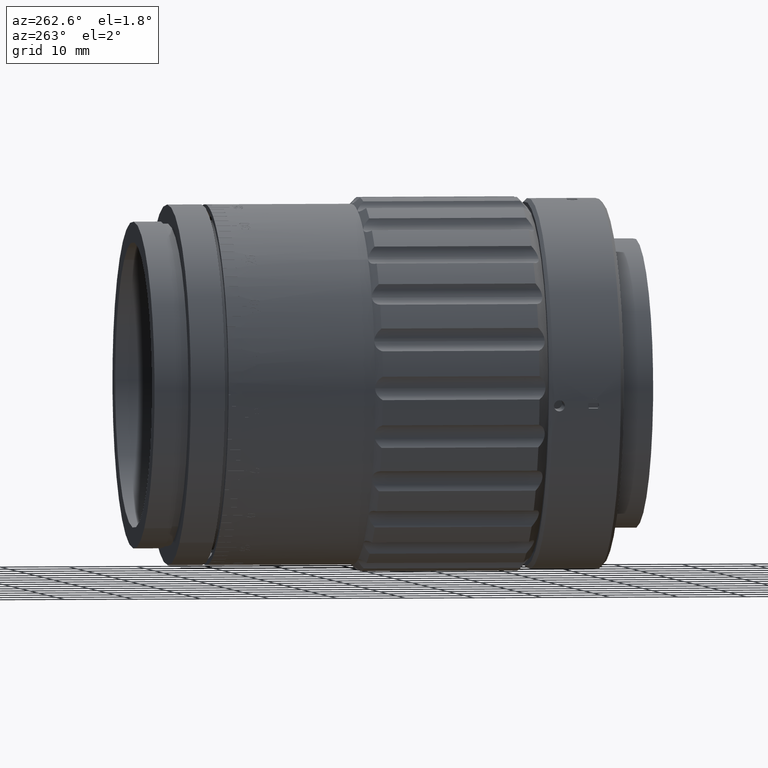
[diagram: clean part render]
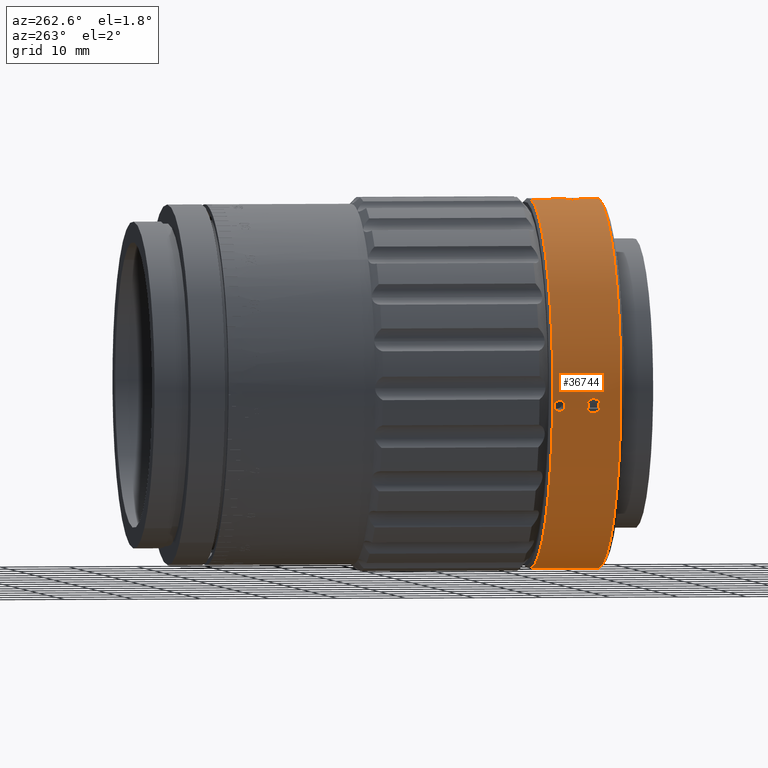
[diagram: same view with one face highlighted and labeled with its STEP entity id]
A machine part, auxiliary view. The second image highlights one B-rep face of the part: STEP entity #36744.
In plain terms, the highlighted cylindrical surface (partial cylindrical patch) has radius 27 mm, axis along (-0, 1, -0).
Its self-contained STEP definition (entity closure, byte-faithful):
#378 = LINE ( 'NONE', #51352, #41033 ) ;
#1504 = CARTESIAN_POINT ( 'NONE',  ( -26.99252879473906200, -0.7919901473986317200, -0.6394071710473803200 ) ) ;
#2109 = CARTESIAN_POINT ( 'NONE',  ( -0.4028455707387504900, -5.999070336816114200, -26.99716824786193200 ) ) ;
#2697 = CARTESIAN_POINT ( 'NONE',  ( -0.8000000000045278700, -5.300000000000415500, -26.98814554577607400 ) ) ;
#3249 = CARTESIAN_POINT ( 'NONE',  ( -0.1055777577861081900, -4.499999999999960900, -27.00000000000000700 ) ) ;
#3613 = EDGE_LOOP ( 'NONE', ( #13681, #47373, #79746, #81574, #82108, #44477, #17124, #57003, #56278, #48354 ) ) ;
#4101 = CARTESIAN_POINT ( 'NONE',  ( -26.98814554577620600, -5.299999999999997200, -0.8000000000000019300 ) ) ;
#4671 = CARTESIAN_POINT ( 'NONE',  ( -26.98814554577608100, -5.300000000000415500, 0.8000000000042450900 ) ) ;
#4807 = CARTESIAN_POINT ( 'NONE',  ( -0.7999999999999077800, -5.088715678432484100, 26.98814554577621300 ) ) ;
#6897 = ORIENTED_EDGE ( 'NONE', *, *, #46007, .F. ) ;
#6957 = CARTESIAN_POINT ( 'NONE',  ( -26.98814554577620600, -5.299999999999997200, -0.8000000000000019300 ) ) ;
#7150 = VECTOR ( 'NONE', #77707, 1000.000000000000000 ) ;
#7521 = CARTESIAN_POINT ( 'NONE',  ( -26.99936523992313700, -6.079312422084790100, 0.2089506809376603100 ) ) ;
#7744 = FACE_OUTER_BOUND ( 'NONE', #3613, .T. ) ;
#8718 = ORIENTED_EDGE ( 'NONE', *, *, #71736, .F. ) ;
#8855 = CARTESIAN_POINT ( 'NONE',  ( -0.6403259576531101800, -5.791053503922866800, -26.99250935347535900 ) ) ;
#9100 = CARTESIAN_POINT ( 'NONE',  ( -26.99999780241738300, -1.099925831581529500, -0.2090123629749049700 ) ) ;
#9713 = CARTESIAN_POINT ( 'NONE',  ( -0.6990070776970701600, -5.702986168747848700, -26.99098000136177000 ) ) ;
#9736 = CARTESIAN_POINT ( 'NONE',  ( -26.99936782619287400, 0.4794047610877862400, -0.2086924303816099500 ) ) ;
#10322 = CARTESIAN_POINT ( 'NONE',  ( -26.99935573635296400, 0.4789883439324663600, 0.2101130331653920100 ) ) ;
#10395 = B_SPLINE_CURVE_WITH_KNOTS ( 'NONE', 3,
 ( #13303, #79771, #39790, #59920, #20020, #73367, #81188, #81767 ),
 .UNSPECIFIED., .F., .F.,
 ( 4, 2, 2, 4 ),
 ( 0.0000000000000000000, 0.0003127337224148459800, 0.0006254674448296919500, 0.001250934889659381700 ),
 .UNSPECIFIED. ) ;
#11385 = CARTESIAN_POINT ( 'NONE',  ( -27.00000260586581600, -4.499912051997977600, -0.1048389072506226600 ) ) ;
#11959 = CARTESIAN_POINT ( 'NONE',  ( -26.99561064362769300, -4.660907787016499900, 0.4923822362610364400 ) ) ;
#12527 = CARTESIAN_POINT ( 'NONE',  ( -26.99715704377385000, -4.601357668019977300, 0.4035705869536567200 ) ) ;
#12713 = VECTOR ( 'NONE', #28845, 1000.000000000000000 ) ;
#13303 = CARTESIAN_POINT ( 'NONE',  ( -0.7999999999999076700, -5.299999999999997200, 26.98814554577620900 ) ) ;
#13375 = EDGE_CURVE ( 'NONE', #69921, #86188, #55148, .T. ) ;
#13376 = CARTESIAN_POINT ( 'NONE',  ( -26.99252879473906200, -5.791990147398633900, -0.6394071710473813200 ) ) ;
#13681 = ORIENTED_EDGE ( 'NONE', *, *, #20611, .F. ) ;
#13940 = CARTESIAN_POINT ( 'NONE',  ( -26.99251117518482700, -5.791153827790166600, 0.6402524440149955900 ) ) ;
#14082 = CARTESIAN_POINT ( 'NONE',  ( 3.306546357697854100E-015, 35.23590944691601100, -27.00000000000000400 ) ) ;
#15796 = CARTESIAN_POINT ( 'NONE',  ( -26.98878449226377200, -0.5094628663668664400, -0.7791829174816232700 ) ) ;
#16402 = CARTESIAN_POINT ( 'NONE',  ( -0.8000000000045278700, -5.300000000000415500, -26.98814554577607400 ) ) ;
#17124 = ORIENTED_EDGE ( 'NONE', *, *, #19124, .T. ) ;
#18396 = CARTESIAN_POINT ( 'NONE',  ( -26.99936782619286300, -4.520595238912213700, -0.2086924303816107600 ) ) ;
#18670 = CARTESIAN_POINT ( 'NONE',  ( -26.99098689323858500, -4.881496996286215600, -0.7130770306225818800 ) ) ;
#19124 = EDGE_CURVE ( 'NONE', #82618, #69004, #62039, .T. ) ;
#19977 = CARTESIAN_POINT ( 'NONE',  ( -0.4916935295135624300, -4.660366324339360500, 26.99562353355641900 ) ) ;
#20020 = CARTESIAN_POINT ( 'NONE',  ( -0.6393357880115693200, -5.792087701774368800, 26.99253056519907200 ) ) ;
#20542 = CARTESIAN_POINT ( 'NONE',  ( 0.0000000000000000000, -9.300000000000002500, 0.0000000000000000000 ) ) ;
#20611 = EDGE_CURVE ( 'NONE', #41851, #65130, #378, .T. ) ;
#20740 = AXIS2_PLACEMENT_3D ( 'NONE', #71781, #72340, #51625 ) ;
#20942 = CARTESIAN_POINT ( 'NONE',  ( -26.99717085908692800, -5.999170141794993000, 0.4026777261065587200 ) ) ;
#21307 = FACE_BOUND ( 'NONE', #44847, .T. ) ;
#22517 = CARTESIAN_POINT ( 'NONE',  ( -26.98878180905359200, -0.5091500004299039900, 0.7792754668592725100 ) ) ;
#23111 = CARTESIAN_POINT ( 'NONE',  ( -0.4920776469118905400, -4.660663907668381800, -26.99561639113073500 ) ) ;
#23166 = CARTESIAN_POINT ( 'NONE',  ( -26.98814554577620200, -0.08860398915272826900, -0.8000000000000010400 ) ) ;
#24018 = CARTESIAN_POINT ( 'NONE',  ( -26.98814554577619500, -0.09119174797818492600, 0.8000000000001783500 ) ) ;
#24920 = LINE ( 'NONE', #31042, #7150 ) ;
#27637 = CARTESIAN_POINT ( 'NONE',  ( -26.98814554577620600, -5.405721945829711200, -0.8000000000000019300 ) ) ;
#28197 = CARTESIAN_POINT ( 'NONE',  ( 0.0000000000000000000, 0.7000000000000339300, 27.00000000000000400 ) ) ;
#28563 = EDGE_LOOP ( 'NONE', ( #69345, #72068 ) ) ;
#28845 = DIRECTION ( 'NONE',  ( -0.0000000000000000000, 1.000000000000000000, -0.0000000000000000000 ) ) ;
#29517 = EDGE_CURVE ( 'NONE', #54181, #69551, #77764, .T. ) ;
#30705 = CARTESIAN_POINT ( 'NONE',  ( -26.99999737755909700, 0.4999114925883655400, 0.1061768573496410900 ) ) ;
#30721 = EDGE_CURVE ( 'NONE', #65130, #38813, #30807, .T. ) ;
#30807 = B_SPLINE_CURVE_WITH_KNOTS ( 'NONE', 3,
 ( #61601, #82308, #75025, #2109, #48748, #8855, #9713, #36784, #56308, #2697 ),
 .UNSPECIFIED., .F., .F.,
 ( 4, 2, 2, 2, 4 ),
 ( 0.001250934889659190100, 0.001563526771067568900, 0.001876118652475947800, 0.002188710533884326500, 0.002501302415292705600 ),
 .UNSPECIFIED. ) ;
#31042 = CARTESIAN_POINT ( 'NONE',  ( 0.0000000000000000000, 35.23590944691601100, 27.00000000000000400 ) ) ;
#34305 = CARTESIAN_POINT ( 'NONE',  ( -26.98878449226377900, -5.509462866366868100, -0.7791829174816239400 ) ) ;
#34891 = CARTESIAN_POINT ( 'NONE',  ( -2.745235950169121100E-024, -4.499999999999997300, 27.00000000000000400 ) ) ;
#35583 = CARTESIAN_POINT ( 'NONE',  ( -1.231113765503358500E-012, -6.100000000010527200, -27.00000000000031600 ) ) ;
#35879 = CARTESIAN_POINT ( 'NONE',  ( -26.99098400059718400, -0.7032414202710672900, -0.6988541108554549000 ) ) ;
#36465 = CARTESIAN_POINT ( 'NONE',  ( -0.4031928956656404800, -4.601130324683815300, -26.99716298219740200 ) ) ;
#36744 = ADVANCED_FACE ( 'NONE', ( #7744, #49466, #21307 ), #42098, .T. ) ;
#36784 = CARTESIAN_POINT ( 'NONE',  ( -0.7792846025471710200, -5.509103455508535400, -26.98878151819407700 ) ) ;
#37053 = CARTESIAN_POINT ( 'NONE',  ( -0.7133946287711061500, -4.882109701198219300, -26.99097714226639200 ) ) ;
#38153 = EDGE_CURVE ( 'NONE', #86188, #72053, #10395, .T. ) ;
#38813 = VERTEX_POINT ( 'NONE', #64437 ) ;
#39790 = CARTESIAN_POINT ( 'NONE',  ( -0.7791729323292893000, -5.509511385822150900, 26.98878480638104800 ) ) ;
#40132 = EDGE_CURVE ( 'NONE', #38813, #51298, #51568, .T. ) ;
#40864 = DIRECTION ( 'NONE',  ( -0.0000000000000000000, 1.000000000000000000, -0.0000000000000000000 ) ) ;
#41033 = VECTOR ( 'NONE', #84604, 1000.000000000000000 ) ;
#41126 = EDGE_CURVE ( 'NONE', #41851, #76396, #65901, .T. ) ;
#41436 = CARTESIAN_POINT ( 'NONE',  ( -26.99251117518483100, -0.7911538277901644100, 0.6402524440149958100 ) ) ;
#41851 = VERTEX_POINT ( 'NONE', #79695 ) ;
#42098 = CYLINDRICAL_SURFACE ( 'NONE', #77087, 27.00000000000000400 ) ;
#42118 = EDGE_CURVE ( 'NONE', #69551, #54181, #67262, .T. ) ;
#42246 = VERTEX_POINT ( 'NONE', #4101 ) ;
#42583 = CARTESIAN_POINT ( 'NONE',  ( -26.99098120701216200, -0.7030715857778819800, 0.6989615673748226200 ) ) ;
#42849 = DIRECTION ( 'NONE',  ( 0.0000000000000000000, 0.0000000000000000000, 1.000000000000000000 ) ) ;
#43199 = CARTESIAN_POINT ( 'NONE',  ( -0.2095706711979230300, -4.520857222349243400, -26.99936024672100700 ) ) ;
#43460 = EDGE_CURVE ( 'NONE', #69921, #82618, #46045, .T. ) ;
#43543 = CARTESIAN_POINT ( 'NONE',  ( -26.99561064362769600, 0.3390922129835006200, 0.4923822362610372800 ) ) ;
#44477 = ORIENTED_EDGE ( 'NONE', *, *, #43460, .T. ) ;
#44847 = EDGE_LOOP ( 'NONE', ( #8718, #6897 ) ) ;
#46007 = EDGE_CURVE ( 'NONE', #63333, #42246, #57831, .T. ) ;
#46045 = LINE ( 'NONE', #69385, #12713 ) ;
#46168 = DIRECTION ( 'NONE',  ( 0.0000000000000000000, 0.0000000000000000000, 1.000000000000000000 ) ) ;
#46572 = CARTESIAN_POINT ( 'NONE',  ( -2.745235950169121100E-024, -4.499999999999997300, 27.00000000000000400 ) ) ;
#46582 = CARTESIAN_POINT ( 'NONE',  ( -26.99098400059718700, -5.703241420271069700, -0.6988541108554555700 ) ) ;
#47373 = ORIENTED_EDGE ( 'NONE', *, *, #41126, .T. ) ;
#47432 = CARTESIAN_POINT ( 'NONE',  ( -26.98814554577608100, -5.300000000000415500, 0.8000000000042450900 ) ) ;
#48133 = CARTESIAN_POINT ( 'NONE',  ( -26.98814554577620900, -0.4044277733566746200, 0.7999999999999096700 ) ) ;
#48354 = ORIENTED_EDGE ( 'NONE', *, *, #30721, .F. ) ;
#48423 = CARTESIAN_POINT ( 'NONE',  ( -27.00000109654970600, -1.100037008554557200, 0.1040800697540591300 ) ) ;
#48748 = CARTESIAN_POINT ( 'NONE',  ( -0.4909796347112259700, -5.940382599746465400, -26.99563886126420100 ) ) ;
#49466 = FACE_BOUND ( 'NONE', #28563, .T. ) ;
#49895 = CARTESIAN_POINT ( 'NONE',  ( 3.306546360444549100E-015, -4.499999999999997300, -27.00000000000000400 ) ) ;
#51298 = VERTEX_POINT ( 'NONE', #76878 ) ;
#51309 = CARTESIAN_POINT ( 'NONE',  ( -26.99562929885511800, -4.660121836214545800, -0.4913876671634151400 ) ) ;
#51352 = CARTESIAN_POINT ( 'NONE',  ( 3.306546357697854100E-015, 35.23590944691601100, -27.00000000000000400 ) ) ;
#51568 = B_SPLINE_CURVE_WITH_KNOTS ( 'NONE', 3,
 ( #16402, #62723, #37053, #23111, #36465, #43199, #3249, #49895 ),
 .UNSPECIFIED., .F., .F.,
 ( 4, 2, 2, 4 ),
 ( 0.002501302415292705600, 0.003126816726712187100, 0.003439573882421928500, 0.003752331038131669900 ),
 .UNSPECIFIED. ) ;
#51625 = DIRECTION ( 'NONE',  ( 0.0000000000000000000, 0.0000000000000000000, -1.000000000000000000 ) ) ;
#52621 = CARTESIAN_POINT ( 'NONE',  ( -0.4031249078069952300, -4.601071344764525500, 26.99716447320465900 ) ) ;
#53178 = CARTESIAN_POINT ( 'NONE',  ( -0.2092375607039467800, -4.520749976198675100, 26.99936330596981500 ) ) ;
#53297 = CARTESIAN_POINT ( 'NONE',  ( -26.99999780241737600, -6.099925831581531500, -0.2090123629749053600 ) ) ;
#53590 = CARTESIAN_POINT ( 'NONE',  ( -26.98814554577620900, -5.404427773356677500, 0.7999999999999091200 ) ) ;
#54181 = VERTEX_POINT ( 'NONE', #56547 ) ;
#54849 = CARTESIAN_POINT ( 'NONE',  ( -26.99936523992314400, -1.079312422084790900, 0.2089506809376607500 ) ) ;
#55148 = B_SPLINE_CURVE_WITH_KNOTS ( 'NONE', 3,
 ( #46572, #71343, #53178, #52621, #19977, #72571, #4807, #71599 ),
 .UNSPECIFIED., .F., .F.,
 ( 4, 2, 2, 4 ),
 ( 0.003752331038131480400, 0.004064757883205314900, 0.004377184728279149800, 0.005002038418426818700 ),
 .UNSPECIFIED. ) ;
#55153 = CARTESIAN_POINT ( 'NONE',  ( -26.98814554577620600, -0.2999999999999959400, -0.8000000000000010400 ) ) ;
#56278 = ORIENTED_EDGE ( 'NONE', *, *, #40132, .F. ) ;
#56308 = CARTESIAN_POINT ( 'NONE',  ( -0.8000000000001917800, -5.404404086272092100, -26.98814554577620200 ) ) ;
#56331 = CARTESIAN_POINT ( 'NONE',  ( -26.99717040799408000, 0.3991557807945795800, -0.4027474472748569000 ) ) ;
#56547 = CARTESIAN_POINT ( 'NONE',  ( -26.98814554577608100, -0.3000000000004140500, 0.8000000000042457600 ) ) ;
#56935 = CARTESIAN_POINT ( 'NONE',  ( -26.99098689323858800, 0.1185030037137863300, -0.7130770306225808800 ) ) ;
#57003 = ORIENTED_EDGE ( 'NONE', *, *, #84096, .F. ) ;
#57504 = CARTESIAN_POINT ( 'NONE',  ( -26.98814554577608100, -0.3000000000004140500, 0.8000000000042457600 ) ) ;
#57831 = B_SPLINE_CURVE_WITH_KNOTS ( 'NONE', 3,
 ( #4671, #85135, #84564, #11959, #12527, #58555, #72601, #11385, #18396, #57995, #51309, #18670, #65019, #72311 ),
 .UNSPECIFIED., .F., .F.,
 ( 4, 2, 2, 2, 2, 2, 4 ),
 ( 0.002501302415292706900, 0.003126486416076236300, 0.003439078416468000600, 0.003751670416859764500, 0.004064262417251528400, 0.004376854417643292700, 0.005002038418426822200 ),
 .UNSPECIFIED. ) ;
#57995 = CARTESIAN_POINT ( 'NONE',  ( -26.99717040799408400, -4.600844219205424000, -0.4027474472748580600 ) ) ;
#58555 = CARTESIAN_POINT ( 'NONE',  ( -26.99935573635296400, -4.521011656067536000, 0.2101130331653920700 ) ) ;
#59920 = CARTESIAN_POINT ( 'NONE',  ( -0.6988094280698002900, -5.703324760589421100, 26.99098518333222400 ) ) ;
#59999 = CARTESIAN_POINT ( 'NONE',  ( -26.99098120701215800, -5.703071585777883500, 0.6989615673748218500 ) ) ;
#61601 = CARTESIAN_POINT ( 'NONE',  ( -1.231113765503358500E-012, -6.100000000010527200, -27.00000000000031600 ) ) ;
#61796 = CARTESIAN_POINT ( 'NONE',  ( 3.306546357697854100E-015, 0.7000000000000339300, -27.00000000000000400 ) ) ;
#61816 = CARTESIAN_POINT ( 'NONE',  ( 0.0000000000000000000, 35.23590944691601100, 0.0000000000000000000 ) ) ;
#62039 = CIRCLE ( 'NONE', #20740, 27.00000000000000400 ) ;
#62427 = CARTESIAN_POINT ( 'NONE',  ( -26.99564129960699800, -0.9404855323284246900, 0.4908498319222283600 ) ) ;
#62723 = CARTESIAN_POINT ( 'NONE',  ( -0.8000000000004603400, -5.091081425918710000, -26.98814554577618500 ) ) ;
#63268 = DIRECTION ( 'NONE',  ( -0.0000000000000000000, 1.000000000000000000, -0.0000000000000000000 ) ) ;
#63333 = VERTEX_POINT ( 'NONE', #85557 ) ;
#64437 = CARTESIAN_POINT ( 'NONE',  ( -0.8000000000045278700, -5.300000000000415500, -26.98814554577607400 ) ) ;
#65019 = CARTESIAN_POINT ( 'NONE',  ( -26.98814554577620600, -5.088603989152730400, -0.8000000000000020400 ) ) ;
#65130 = VERTEX_POINT ( 'NONE', #35583 ) ;
#65437 = CARTESIAN_POINT ( 'NONE',  ( 1.234420311641378900E-012, -6.100000000010527200, 27.00000000000031600 ) ) ;
#65901 = CIRCLE ( 'NONE', #70216, 27.00000000000000400 ) ;
#67186 = DIRECTION ( 'NONE',  ( -0.0000000000000000000, 1.000000000000000000, -0.0000000000000000000 ) ) ;
#67262 = B_SPLINE_CURVE_WITH_KNOTS ( 'NONE', 3,
 ( #81393, #82554, #15796, #35879, #1504, #68870, #9100, #48423, #54849, #68596, #62427, #41436, #42583, #22517, #48133, #81688 ),
 .UNSPECIFIED., .F., .F.,
 ( 4, 2, 2, 2, 2, 2, 2, 4 ),
 ( 5.421010862427521600E-020, 0.0003126628019115884700, 0.0006253256038231768200, 0.001250651207646353000, 0.001563314009557941400, 0.001875976811469529300, 0.002188639613381117200, 0.002501302415292705600 ),
 .UNSPECIFIED. ) ;
#67597 = CARTESIAN_POINT ( 'NONE',  ( -26.98878180905358100, -5.509150000429905900, 0.7792754668592719600 ) ) ;
#68505 = VECTOR ( 'NONE', #40864, 1000.000000000000000 ) ;
#68596 = CARTESIAN_POINT ( 'NONE',  ( -26.99717085908692800, -0.9991701417949895300, 0.4026777261065592200 ) ) ;
#68870 = CARTESIAN_POINT ( 'NONE',  ( -26.99716906235829600, -1.013380447473373900, -0.4179374106959777800 ) ) ;
#69004 = VERTEX_POINT ( 'NONE', #61796 ) ;
#69345 = ORIENTED_EDGE ( 'NONE', *, *, #42118, .F. ) ;
#69385 = CARTESIAN_POINT ( 'NONE',  ( 0.0000000000000000000, 35.23590944691601100, 27.00000000000000400 ) ) ;
#69538 = CARTESIAN_POINT ( 'NONE',  ( -26.99715704377384600, 0.3986423319800251900, 0.4035705869536567200 ) ) ;
#69551 = VERTEX_POINT ( 'NONE', #55153 ) ;
#69819 = CARTESIAN_POINT ( 'NONE',  ( -26.98814554577620600, -0.2999999999999959400, -0.8000000000000010400 ) ) ;
#69921 = VERTEX_POINT ( 'NONE', #34891 ) ;
#70150 = CARTESIAN_POINT ( 'NONE',  ( -0.7999999999999076700, -5.299999999999997200, 26.98814554577620900 ) ) ;
#70216 = AXIS2_PLACEMENT_3D ( 'NONE', #20542, #67186, #46168 ) ;
#70689 = CARTESIAN_POINT ( 'NONE',  ( -26.99097393854134800, 0.1176762962197806800, 0.7134865133290050300 ) ) ;
#71343 = CARTESIAN_POINT ( 'NONE',  ( -0.1054662544817855800, -4.500000000000009800, 27.00000000000000000 ) ) ;
#71426 = CARTESIAN_POINT ( 'NONE',  ( 0.0000000000000000000, -9.300000000000002500, 27.00000000000000400 ) ) ;
#71599 = CARTESIAN_POINT ( 'NONE',  ( -0.7999999999999076700, -5.299999999999997200, 26.98814554577620900 ) ) ;
#71736 = EDGE_CURVE ( 'NONE', #42246, #63333, #82879, .T. ) ;
#71781 = CARTESIAN_POINT ( 'NONE',  ( 0.0000000000000000000, 0.7000000000000339300, 0.0000000000000000000 ) ) ;
#72053 = VERTEX_POINT ( 'NONE', #65437 ) ;
#72068 = ORIENTED_EDGE ( 'NONE', *, *, #29517, .F. ) ;
#72311 = CARTESIAN_POINT ( 'NONE',  ( -26.98814554577620600, -5.299999999999997200, -0.8000000000000019300 ) ) ;
#72340 = DIRECTION ( 'NONE',  ( 0.0000000000000000000, -1.000000000000000000, 0.0000000000000000000 ) ) ;
#72571 = CARTESIAN_POINT ( 'NONE',  ( -0.7131679168546680700, -4.881709925544518200, 26.99098370738368800 ) ) ;
#72601 = CARTESIAN_POINT ( 'NONE',  ( -26.99999737755909700, -4.500088507411635200, 0.1061768573496406600 ) ) ;
#73367 = CARTESIAN_POINT ( 'NONE',  ( -0.4177787390448513500, -6.013486614788467600, 26.99717183664534700 ) ) ;
#73723 = CARTESIAN_POINT ( 'NONE',  ( -27.00000109654969900, -6.100037008554556600, 0.1040800697540588000 ) ) ;
#73768 = LINE ( 'NONE', #14082, #68505 ) ;
#75025 = CARTESIAN_POINT ( 'NONE',  ( -0.2091783036279130400, -6.079248565588198300, -26.99936337017078000 ) ) ;
#76194 = CARTESIAN_POINT ( 'NONE',  ( -27.00000260586582000, 0.5000879480020235000, -0.1048389072506224300 ) ) ;
#76396 = VERTEX_POINT ( 'NONE', #71426 ) ;
#76878 = CARTESIAN_POINT ( 'NONE',  ( 3.306546360444549100E-015, -4.499999999999997300, -27.00000000000000400 ) ) ;
#77087 = AXIS2_PLACEMENT_3D ( 'NONE', #61816, #63268, #42849 ) ;
#77707 = DIRECTION ( 'NONE',  ( -0.0000000000000000000, 1.000000000000000000, -0.0000000000000000000 ) ) ;
#77764 = B_SPLINE_CURVE_WITH_KNOTS ( 'NONE', 3,
 ( #57504, #24018, #70689, #43543, #69538, #10322, #30705, #76194, #9736, #56331, #82902, #56935, #23166, #69819 ),
 .UNSPECIFIED., .F., .F.,
 ( 4, 2, 2, 2, 2, 2, 4 ),
 ( 0.002501302415292705600, 0.003126486416076233700, 0.003439078416467997600, 0.003751670416859761500, 0.004064262417251525800, 0.004376854417643289200, 0.005002038418426817800 ),
 .UNSPECIFIED. ) ;
#79695 = CARTESIAN_POINT ( 'NONE',  ( 3.306546357697854100E-015, -9.300000000000002500, -27.00000000000000400 ) ) ;
#79746 = ORIENTED_EDGE ( 'NONE', *, *, #81061, .T. ) ;
#79771 = CARTESIAN_POINT ( 'NONE',  ( -0.7999999999999080100, -5.405745926468143600, 26.98814554577622000 ) ) ;
#80127 = CARTESIAN_POINT ( 'NONE',  ( -26.99716906235829900, -6.013380447473376300, -0.4179374106959787300 ) ) ;
#80694 = CARTESIAN_POINT ( 'NONE',  ( -26.99564129960699400, -5.940485532328426500, 0.4908498319222277500 ) ) ;
#81061 = EDGE_CURVE ( 'NONE', #76396, #72053, #24920, .T. ) ;
#81188 = CARTESIAN_POINT ( 'NONE',  ( -0.2087795574650591900, -6.100000000000441100, 27.00000000000002100 ) ) ;
#81393 = CARTESIAN_POINT ( 'NONE',  ( -26.98814554577620600, -0.2999999999999959400, -0.8000000000000010400 ) ) ;
#81574 = ORIENTED_EDGE ( 'NONE', *, *, #38153, .F. ) ;
#81688 = CARTESIAN_POINT ( 'NONE',  ( -26.98814554577608100, -0.3000000000004140500, 0.8000000000042457600 ) ) ;
#81767 = CARTESIAN_POINT ( 'NONE',  ( 1.234420311641378900E-012, -6.100000000010527200, 27.00000000000031600 ) ) ;
#82108 = ORIENTED_EDGE ( 'NONE', *, *, #13375, .F. ) ;
#82308 = CARTESIAN_POINT ( 'NONE',  ( -0.1043424325418885300, -6.099999999999800700, -26.99999999999999300 ) ) ;
#82554 = CARTESIAN_POINT ( 'NONE',  ( -26.98814554577620600, -0.4057219458297085000, -0.8000000000000009300 ) ) ;
#82618 = VERTEX_POINT ( 'NONE', #28197 ) ;
#82879 = B_SPLINE_CURVE_WITH_KNOTS ( 'NONE', 3,
 ( #6957, #27637, #34305, #46582, #13376, #80127, #53297, #73723, #7521, #20942, #80694, #13940, #59999, #67597, #53590, #47432 ),
 .UNSPECIFIED., .F., .F.,
 ( 4, 2, 2, 2, 2, 2, 2, 4 ),
 ( 0.0000000000000000000, 0.0003126628019115878700, 0.0006253256038231757400, 0.001250651207646352800, 0.001563314009557941600, 0.001875976811469529900, 0.002188639613381118500, 0.002501302415292706900 ),
 .UNSPECIFIED. ) ;
#82902 = CARTESIAN_POINT ( 'NONE',  ( -26.99562929885510700, 0.3398781637854570400, -0.4913876671634137500 ) ) ;
#84096 = EDGE_CURVE ( 'NONE', #51298, #69004, #73768, .T. ) ;
#84564 = CARTESIAN_POINT ( 'NONE',  ( -26.99097393854134800, -4.882323703780220300, 0.7134865133290048100 ) ) ;
#84604 = DIRECTION ( 'NONE',  ( -0.0000000000000000000, 1.000000000000000000, -0.0000000000000000000 ) ) ;
#85135 = CARTESIAN_POINT ( 'NONE',  ( -26.98814554577619500, -5.091191747978185400, 0.8000000000001774600 ) ) ;
#85557 = CARTESIAN_POINT ( 'NONE',  ( -26.98814554577608100, -5.300000000000415500, 0.8000000000042450900 ) ) ;
#86188 = VERTEX_POINT ( 'NONE', #70150 ) ;